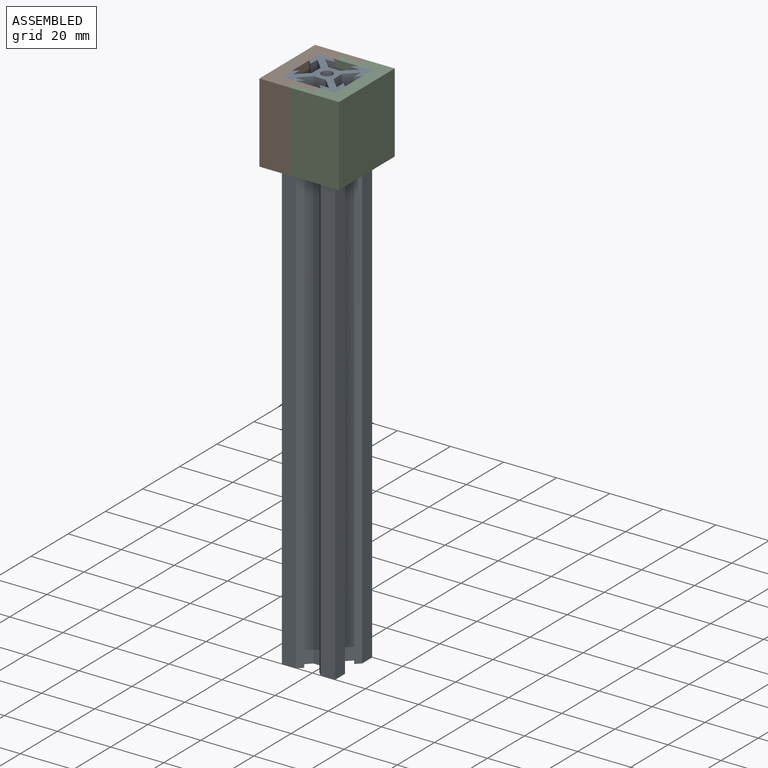
[diagram: assembled view]
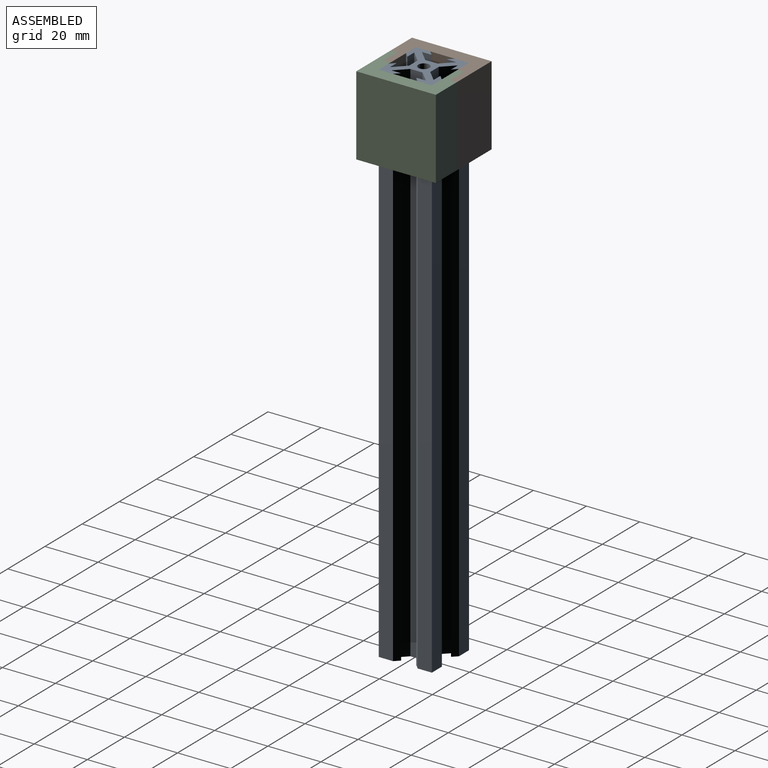
[diagram: assembled view, second angle]
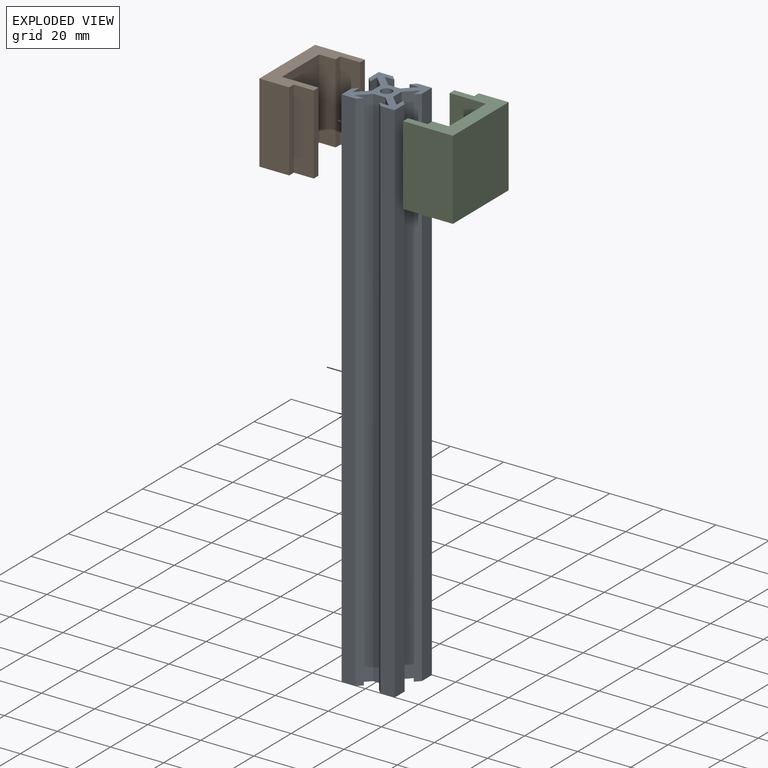
[diagram: exploded view]
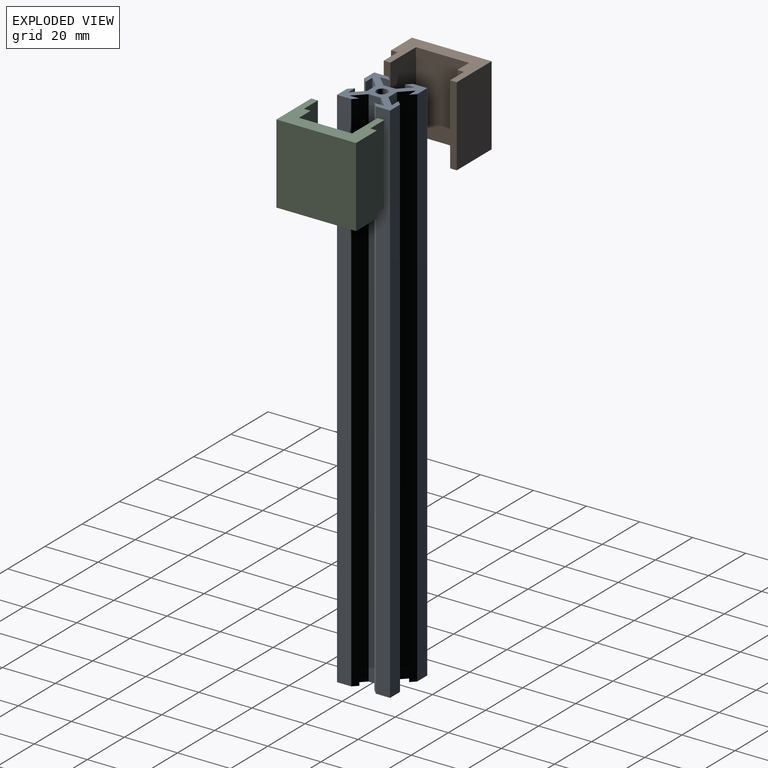
[diagram: exploded view, second angle]
ASSEMBLY  parts=3 mates=2
PART A: 39 faces, bbox 20x20x200 mm
  f0: plane 200x1.8mm, normal (-0.71,-0.71,0), area 509.1mm2, adj f1,f35,f37,f38
  f1: plane 200x3.66mm, normal (1,0,0), area 731.1mm2, adj f0,f2,f37,f38
  f2: plane 200x4.2mm, normal (-0.71,-0.71,0), area 1187.9mm2, adj f1,f3,f37,f38
  f3: plane 200x4.59mm, normal (-1,0,0), area 918.2mm2, adj f2,f4,f37,f38
  f4: plane 200x4.2mm, normal (-0.71,0.71,0), area 1187.9mm2, adj f3,f5,f37,f38
  f5: plane 200x3.66mm, normal (1,0,0), area 731.1mm2, adj f4,f6,f37,f38
  f6: plane 200x1.8mm, normal (-0.71,0.71,0), area 509.1mm2, adj f5,f7,f37,f38
  f7: plane 200x5.36mm, normal (-1,0,0), area 1072mm2, adj f6,f8,f37,f38
  f8: plane 200x5.36mm, normal (0,-1,0), area 1072mm2, adj f7,f9,f37,f38
  f9: plane 200x1.8mm, normal (0.71,-0.71,0), area 509.1mm2, adj f8,f10,f37,f38
  f10: plane 200x3.66mm, normal (0,1,0), area 731.1mm2, adj f9,f11,f37,f38
  f11: plane 200x4.2mm, normal (0.71,-0.71,0), area 1187.9mm2, adj f10,f12,f37,f38
  f12: plane 200x4.59mm, normal (0,-1,0), area 918.2mm2, adj f11,f13,f37,f38
  f13: plane 200x4.2mm, normal (-0.71,-0.71,0), area 1187.9mm2, adj f12,f14,f37,f38
  f14: plane 200x3.66mm, normal (0,1,0), area 731.1mm2, adj f13,f15,f37,f38
  f15: plane 200x1.8mm, normal (-0.71,-0.71,0), area 509.1mm2, adj f14,f16,f37,f38
  f16: plane 200x5.36mm, normal (0,-1,0), area 1072mm2, adj f15,f17,f37,f38
  f17: plane 200x5.36mm, normal (1,0,0), area 1072mm2, adj f16,f18,f37,f38
  f18: plane 200x1.8mm, normal (0.71,0.71,0), area 509.1mm2, adj f17,f19,f37,f38
  f19: plane 200x3.66mm, normal (-1,0,0), area 731.1mm2, adj f18,f20,f37,f38
  f20: plane 200x4.2mm, normal (0.71,0.71,0), area 1187.9mm2, adj f19,f21,f37,f38
  f21: plane 200x4.59mm, normal (1,0,0), area 918.2mm2, adj f20,f22,f37,f38
  f22: plane 200x4.2mm, normal (0.71,-0.71,0), area 1187.9mm2, adj f21,f23,f37,f38
  f23: plane 200x3.66mm, normal (-1,0,0), area 731.1mm2, adj f22,f24,f37,f38
  f24: plane 200x1.8mm, normal (0.71,-0.71,0), area 509.1mm2, adj f23,f25,f37,f38
  f25: plane 200x5.36mm, normal (1,0,0), area 1072mm2, adj f24,f26,f37,f38
  f26: plane 200x5.36mm, normal (0,1,0), area 1072mm2, adj f25,f27,f37,f38
  f27: plane 200x1.8mm, normal (-0.71,0.71,0), area 509.1mm2, adj f26,f28,f37,f38
  f28: plane 200x3.66mm, normal (0,-1,0), area 731.1mm2, adj f27,f29,f37,f38
  f29: plane 200x4.2mm, normal (-0.71,0.71,0), area 1187.9mm2, adj f28,f30,f37,f38
  f30: plane 200x4.59mm, normal (0,1,0), area 918.2mm2, adj f29,f31,f37,f38
  f31: plane 200x4.2mm, normal (0.71,0.71,0), area 1187.9mm2, adj f30,f32,f37,f38
  f32: plane 200x3.66mm, normal (0,-1,0), area 731.1mm2, adj f31,f33,f37,f38
  f33: plane 200x1.8mm, normal (0.71,0.71,0), area 509.1mm2, adj f32,f34,f37,f38
  f34: plane 200x5.36mm, normal (0,1,0), area 1072mm2, adj f33,f35,f37,f38
  f35: plane 200x5.36mm, normal (-1,0,0), area 1072mm2, adj f0,f34,f37,f38
  f36: cylinder r=2.1mm len=200mm, axis (0,0,-1), area 2638.9mm2, adj f37,f38
  f37: plane 20x20mm, normal (0,0,1), area 184.6mm2, adj f0,f1,f2,f3,f4,f5,f6,f7
  f38: plane 20x20mm, normal (0,0,-1), area 184.6mm2, adj f0,f1,f2,f3,f4,f5,f6,f7
PART B: 14 faces, bbox 30x30x18.8 mm
  f0: plane 30x18.75mm, normal (-1,0,0), area 250mm2, adj f2,f3,f4,f5,f6,f7,f8,f9
  f1: plane 30x18.75mm, normal (1,0,0), area 250mm2, adj f2,f3,f4,f5,f6,f7,f8,f9
  f2: plane 30x11.25mm, normal (0,-1,0), area 337.5mm2, adj f0,f1,f7,f13
  f3: plane 30x2.5mm, normal (0,0,1), area 75mm2, adj f0,f1,f8,f12
  f4: plane 30x6.25mm, normal (0,-1,0), area 187.5mm2, adj f0,f1,f6,f11
  f5: plane 30x2.5mm, normal (0,0,1), area 75mm2, adj f0,f1,f9,f10
  f6: plane 30x20mm, normal (0,0,1), area 600mm2, adj f0,f1,f4,f8
  f7: plane 30x30mm, normal (0,0,-1), area 900mm2, adj f0,f1,f2,f9
  f8: plane 30x13.75mm, normal (0,1,0), area 412.5mm2, adj f0,f1,f3,f6
  f9: plane 30x18.75mm, normal (0,1,0), area 562.5mm2, adj f0,f1,f5,f7
  f10: plane 30x7.5mm, normal (0,-1,0), area 225mm2, adj f0,f1,f5,f11
  f11: plane 30x2.5mm, normal (0,0,1), area 75mm2, adj f0,f1,f4,f10
  f12: plane 30x7.5mm, normal (0,-1,0), area 225mm2, adj f0,f1,f3,f13
  f13: plane 30x2.5mm, normal (0,0,1), area 75mm2, adj f0,f1,f2,f12
PART C: same geometry as B
PLACE A t=(-87.59,24.48,-30.72)mm
PLACE B rot(axis=(0,1,0),90deg) t=(-52.59,24.48,154.28)mm
PLACE C rot(axis=(-0.71,0,0.71),180deg) t=(-22.59,24.48,154.28)mm
MATE fastened C.f5 <-> B.f13  axis (-1,0,0) through (-41.34,10.73,154.28)mm
MATE fastened B.f6 <-> A.f7  axis (1,0,0) through (-47.59,14.48,169.28)mm
